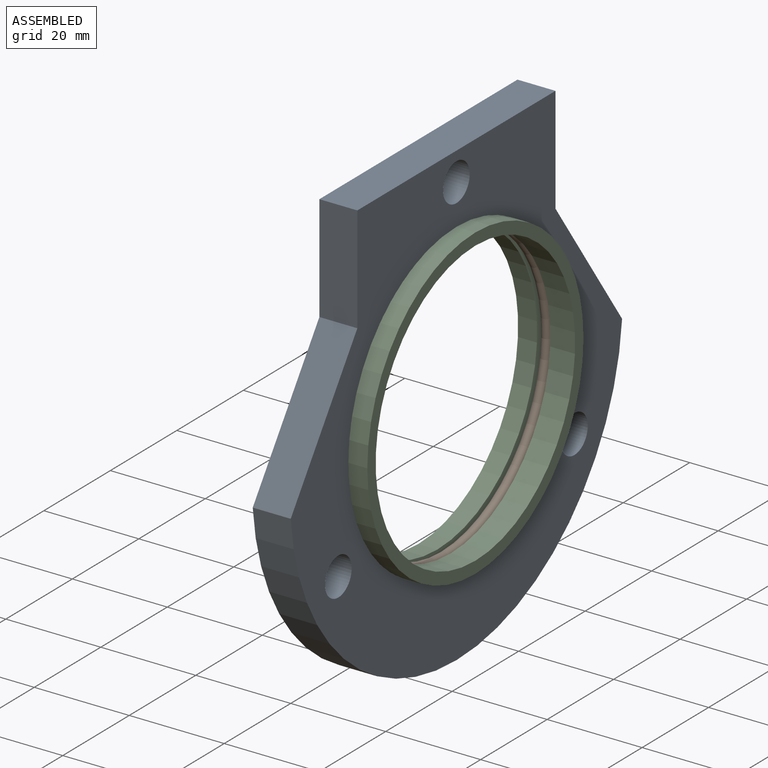
[diagram: assembled view]
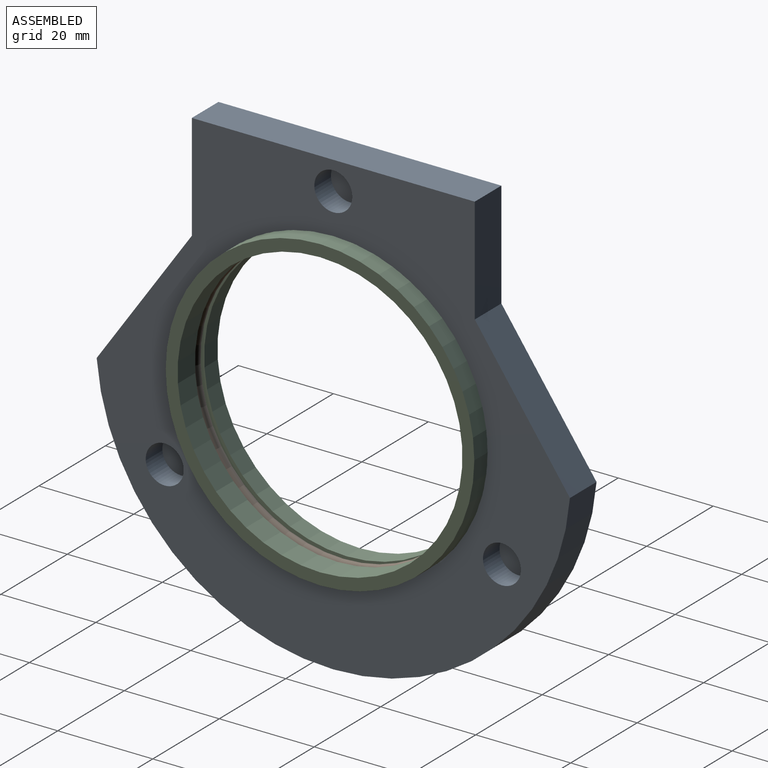
[diagram: assembled view, second angle]
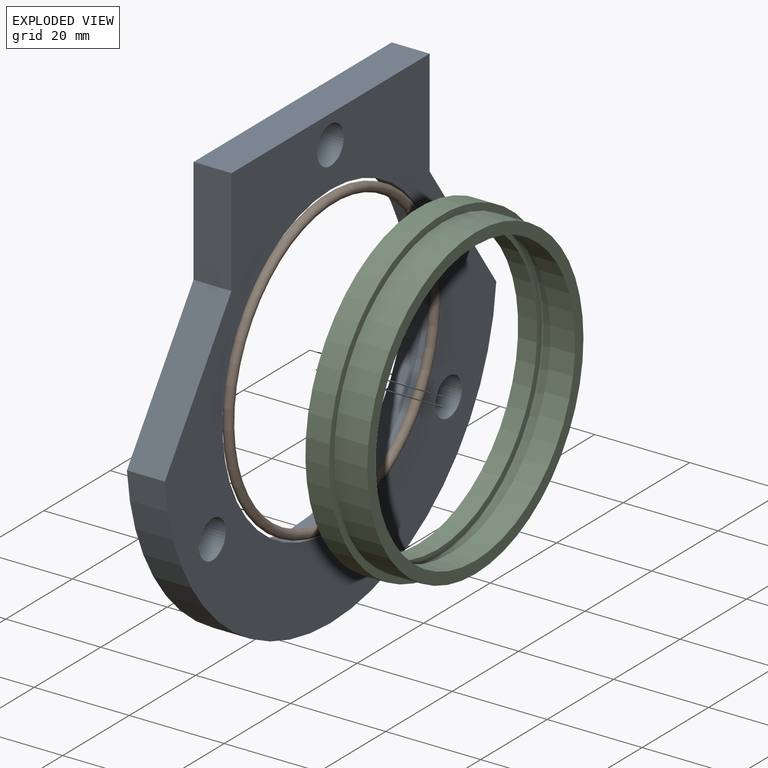
[diagram: exploded view]
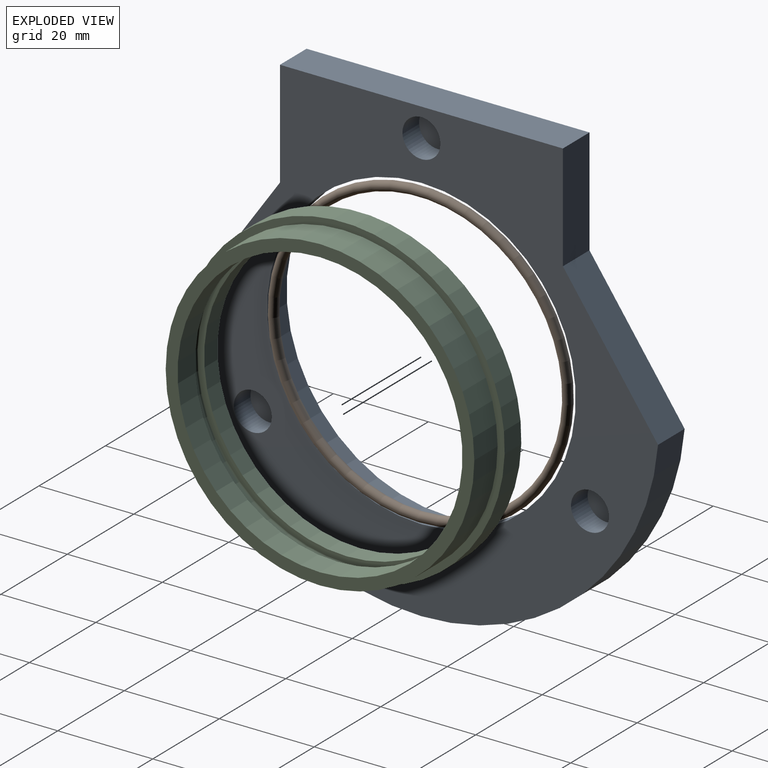
[diagram: exploded view, second angle]
ASSEMBLY  parts=3 mates=2
PART A: 17 faces, bbox 97x99.7x8 mm
  f0: cylinder r=34mm len=68mm, axis (0,0,-1), area 1068.1mm2, adj f8,f10
  f1: plane 28.62x20.04mm, normal (-0.57,0.82,0), area 279.6mm2, adj f2,f6,f7,f8
  f2: plane 22.43x8mm, normal (0,1,0), area 179.4mm2, adj f1,f3,f7,f8
  f3: plane 59.59x8mm, normal (-1,0,0), area 476.7mm2, adj f2,f4,f7,f8
  f4: plane 22.43x8mm, normal (0,-1,0), area 179.4mm2, adj f3,f5,f7,f8
  f5: plane 28.62x20.04mm, normal (-0.57,-0.82,0), area 279.6mm2, adj f4,f6,f7,f8
  f6: cylinder r=50mm len=99.67mm, axis (0,0,-1), area 1191.8mm2, adj f1,f5,f7,f8
  f7: plane 99.67x97mm, normal (0,0,1), area 3668.9mm2, adj f1,f2,f3,f4,f5,f6,f9,f11
  f8: plane 99.67x97mm, normal (0,0,-1), area 3506.3mm2, adj f0,f1,f2,f3,f4,f5,f6
  f9: cylinder r=32.5mm len=65mm, axis (0,0,-1), area 612.6mm2, adj f7,f10
  f10: plane 68x68mm, normal (0,0,-1), area 313.4mm2, adj f0,f9
  f11: cylinder r=4mm len=8mm, axis (0,0,1), area 125.7mm2, adj f7,f12
  f12: plane 8x8mm, normal (0,0,1), area 50.3mm2, adj f11
  f13: cylinder r=4mm len=8mm, axis (0,0,1), area 125.7mm2, adj f7,f14
  f14: plane 8x8mm, normal (0,0,1), area 50.3mm2, adj f13
  f15: cylinder r=4mm len=8mm, axis (0,0,1), area 125.7mm2, adj f7,f16
  f16: plane 8x8mm, normal (0,0,1), area 50.3mm2, adj f15
PART B: 1 faces, bbox 2x69.3x69.3 mm
  f0: torus R=31mm, axis (1,0,0), area 1223.8mm2
PART C: 12 faces, bbox 68.4x68.4x12 mm
  f0: cylinder r=30mm len=60mm, axis (0,0,-1), area 983.9mm2, adj f3,f5
  f1: cylinder r=30mm len=60mm, axis (0,0,-1), area 754mm2, adj f4,f9
  f2: cylinder r=32.5mm len=65mm, axis (0,0,-1), area 1429.4mm2, adj f3,f11
  f3: plane 65x65mm, normal (0,0,1), area 490.9mm2, adj f0,f2
  f4: plane 68x68mm, normal (0,0,-1), area 804.2mm2, adj f1,f10
  f5: plane 62.6x62.6mm, normal (0,0,-1), area 250.4mm2, adj f0,f6
  f6: torus R=31.3mm, axis (0,0,1), area 93.2mm2, adj f5,f7
  f7: cylinder r=31.6mm len=63.2mm, axis (0,0,1), area 432.8mm2, adj f6,f8
  f8: torus R=31.3mm, axis (0,0,1), area 93.2mm2, adj f7,f9
  f9: plane 62.6x62.6mm, normal (0,0,1), area 250.4mm2, adj f1,f8
  f10: cylinder r=34mm len=68mm, axis (0,0,-1), area 1068.1mm2, adj f4,f11
  f11: plane 68x68mm, normal (0,0,1), area 313.4mm2, adj f2,f10
PLACE A rot(axis=(0,1,0),90deg) t=(-32.11,-2.44,-14.58)mm
PLACE B t=(-26.72,-12.85,3.45)mm
PLACE C rot(axis=(0,1,0),90deg) t=(-32.11,-2.44,-14.58)mm
MATE fastened C.f0 <-> A.f0  axis (-1,0,0) through (-32.11,-12.85,3.45)mm
MATE fastened C.f0 <-> B.f0  axis (1,0,0) through (-26.72,-12.85,3.45)mm
